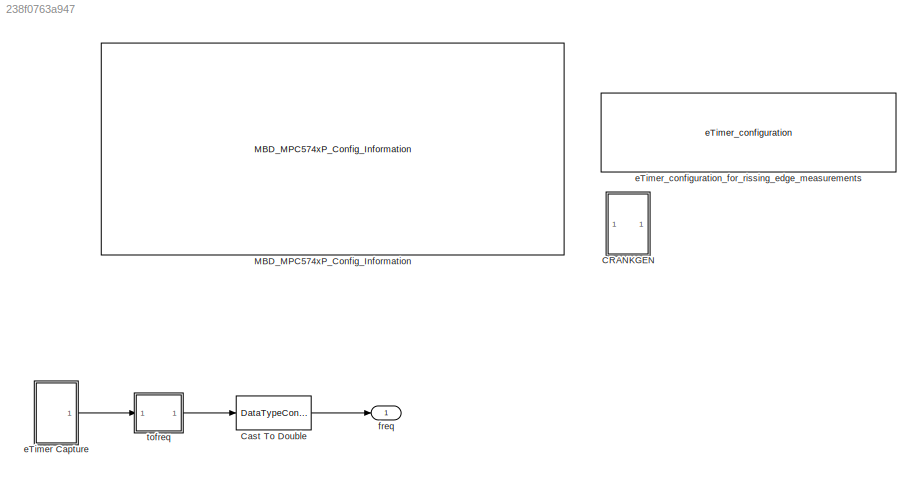
MODEL slx_238f0763a947
KIND model
CONFIG AbsTol = auto
CONFIG EnableMultiTasking = on
CONFIG FixedStep = 1
CONFIG InitFcn = mbd_pnt_consistency_checks(bdroot(gcs));
CONFIG MaxStep = auto
CONFIG MinStep = auto
CONFIG RelTol = 1e-3
CONFIG SampleTimeConstraint = Unconstrained
CONFIG Solver = FixedStepDiscrete
CONFIG SolverName = FixedStepDiscrete
CONFIG StartTime = 0.0
CONFIG StopTime = 50
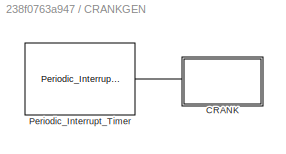
BLOCK [SubSystem] CRANKGEN
  Ports = []
  RequestExecContextInheritance = off
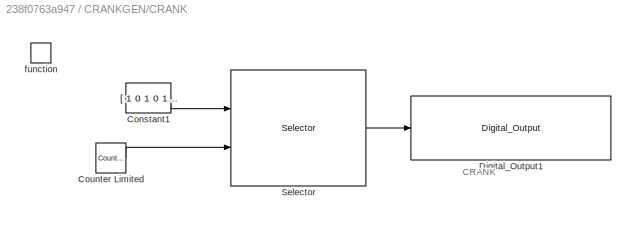
BLOCK [SubSystem] CRANKGEN/CRANK
  Ports = [0, 0, 0, 1]
  RequestExecContextInheritance = off
  TreatAsAtomicUnit = on
BLOCK [Constant] CRANKGEN/CRANK/Constant1
  OutDataTypeStr = boolean
  Value = [ 1 0 1 0 1 0 1 0 1 0 1 0 1 0 1 0 1 0 1 0 1 0 1 0 1 0 1 0 1 0 1 0 1 0 1 0 0 0 0 0 1 0 1 0 1 0 1 0 1 0 1 0 1 0 1 0 1 0 1 0 1 0 1 0 1 0 1 0 1 0 1 0 1 0 1 0 0 0 0 0 1 0 1 0 1 0 1 0 1 0 1 0 1 0 1 0 1 0 1 0 1 0 1 0 1 0 1 0 1 0 1 0 1 0 1 0 0 0 0 0 1 0 1 0 1 0 1 0 1 0 1 0 1 0 1 0 1 0 1 0 1 0 1 0 1 0 1 0 1 0 1 0 1 0 1 0 0 0 0 0 1 0 1 0 1 0 1 0 1 0 1 0 1 0 1 0 1 0 1 0 1 0 1 0 1 0 1 0 1 0 1 0 1 0 1 0 0 0 0 ...<+83ch>
BLOCK [Reference] CRANKGEN/CRANK/Counter Limited  REF=simulink/Sources/Counter
Limited
  Ports = [0, 1]
  SourceBlock = simulink/Sources/Counter\nLimited
  SourceProductBaseCode = SL
  SourceProductName = Simulink
  SourceType = Counter Limited
BLOCK [Reference] CRANKGEN/CRANK/Digital_Output1  REF=mbd_pnt_ec_toolbox/MPC574xP/Peripheral Interface Blocks/Digital_Output
  Ports = [1]
  SourceBlock = mbd_pnt_ec_toolbox/MPC574xP/Peripheral Interface Blocks/Digital_Output
  SourceProductName = Model Based Design Toolbox for MPC574xP
  SourceType = GPIO_PNT_Output
BLOCK [Selector] CRANKGEN/CRANK/Selector
  IndexMode = Zero-based
  IndexOptions = Index vector (port)
  Indices = [1 3]
  InputPortWidth = 240
  OutputSizes = 1
  Ports = [2, 1]
BLOCK [TriggerPort] CRANKGEN/CRANK/function
  Ports = []
  StatesWhenEnabling = held
  TriggerType = function-call
  VariantControl = Variant
BLOCK [Reference] CRANKGEN/Periodic_Interrupt_Timer  REF=mbd_pnt_ec_toolbox/MPC574xP/Utility Blocks/Periodic_Interrupt_Timer
  Ports = [0, 1]
  SourceBlock = mbd_pnt_ec_toolbox/MPC574xP/Utility Blocks/Periodic_Interrupt_Timer
  SourceProductName = Model Based Design Toolbox for MPC574xP
  SourceType = timer_pnt_pit_block
BLOCK [DataTypeConversion] Cast To Double
  OutDataTypeStr = double
  RndMeth = Floor
  SaturateOnIntegerOverflow = off
BLOCK [Reference] MBD_MPC574xP_Config_Information  REF=mbd_pnt_ec_toolbox/MPC574xP/MBD_MPC574xP_Config_Information
  Ports = []
  SourceBlock = mbd_pnt_ec_toolbox/MPC574xP/MBD_MPC574xP_Config_Information
  SourceProductName = Model Based Design Toolbox for MPC574xP
  SourceType = MBDTBX_EC_PNT
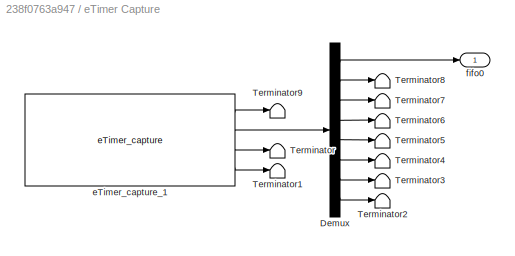
BLOCK [SubSystem] eTimer Capture
  Ports = [0, 1]
  RequestExecContextInheritance = off
BLOCK [Demux] eTimer Capture/Demux
  DisplayOption = bar
  Outputs = 8
  Ports = [1, 8]
BLOCK [Terminator] eTimer Capture/Terminator
BLOCK [Terminator] eTimer Capture/Terminator1
BLOCK [Terminator] eTimer Capture/Terminator2
BLOCK [Terminator] eTimer Capture/Terminator3
BLOCK [Terminator] eTimer Capture/Terminator4
BLOCK [Terminator] eTimer Capture/Terminator5
BLOCK [Terminator] eTimer Capture/Terminator6
BLOCK [Terminator] eTimer Capture/Terminator7
BLOCK [Terminator] eTimer Capture/Terminator8
BLOCK [Terminator] eTimer Capture/Terminator9
BLOCK [Reference] eTimer Capture/eTimer_capture_1  REF=mbd_pnt_ec_toolbox/MPC574xP/Motor Control Blocks/eTimer_capture
  Ports = [0, 4]
  SourceBlock = mbd_pnt_ec_toolbox/MPC574xP/Motor Control Blocks/eTimer_capture
  SourceProductName = Model Based Design Toolbox for MPC574xP
  SourceType = eTimer_pnt_capture
BLOCK [Outport] eTimer Capture/fifo0
  IconDisplay = Port number
BLOCK [Reference] eTimer_configuration_for_rissing_edge_measurements  REF=mbd_pnt_ec_toolbox/MPC574xP/Motor Control Blocks/eTimer_configuration
  Ports = []
  SourceBlock = mbd_pnt_ec_toolbox/MPC574xP/Motor Control Blocks/eTimer_configuration
  SourceProductName = Model Based Design Toolbox for MPC574xP
  SourceType = eTimer_pnt_config
BLOCK [Outport] freq
  IconDisplay = Port number
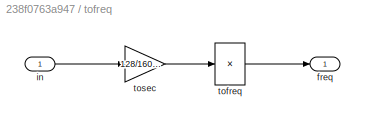
BLOCK [SubSystem] tofreq
  Ports = [1, 1]
  RequestExecContextInheritance = off
BLOCK [Outport] tofreq/freq
  IconDisplay = Port number
BLOCK [Inport] tofreq/in
  IconDisplay = Port number
BLOCK [Product] tofreq/tofreq
  InputSameDT = off
  Inputs = /
  OutDataTypeStr = uint16
  Ports = [1, 1]
  RndMeth = Ceiling
  SaturateOnIntegerOverflow = off
BLOCK [Gain] tofreq/tosec
  Gain = 128/160e+6
  OutDataTypeStr = double
  ParamDataTypeStr = Inherit: Inherit via internal rule
  RndMeth = Ceiling
  SaturateOnIntegerOverflow = off
ANNOTATION CRANKGEN/CRANK: CRANK
LINE CRANKGEN/CRANK/Constant1:1 -> CRANKGEN/CRANK/Selector:1
LINE CRANKGEN/CRANK/Counter Limited:1 -> CRANKGEN/CRANK/Selector:2
LINE CRANKGEN/CRANK/Selector:1 -> CRANKGEN/CRANK/Digital_Output1:1
LINE CRANKGEN/Periodic_Interrupt_Timer:1 -> CRANKGEN/CRANK:trigger
LINE Cast To Double:1 -> freq:1
LINE eTimer Capture/Demux:1 -> eTimer Capture/fifo0:1
LINE eTimer Capture/Demux:2 -> eTimer Capture/Terminator8:1
LINE eTimer Capture/Demux:3 -> eTimer Capture/Terminator7:1
LINE eTimer Capture/Demux:4 -> eTimer Capture/Terminator6:1
LINE eTimer Capture/Demux:5 -> eTimer Capture/Terminator5:1
LINE eTimer Capture/Demux:6 -> eTimer Capture/Terminator4:1
LINE eTimer Capture/Demux:7 -> eTimer Capture/Terminator3:1
LINE eTimer Capture/Demux:8 -> eTimer Capture/Terminator2:1
LINE eTimer Capture/eTimer_capture_1:1 -> eTimer Capture/Terminator9:1
LINE eTimer Capture/eTimer_capture_1:2 -> eTimer Capture/Demux:1
LINE eTimer Capture/eTimer_capture_1:3 -> eTimer Capture/Terminator:1
LINE eTimer Capture/eTimer_capture_1:4 -> eTimer Capture/Terminator1:1
LINE eTimer Capture:1 -> tofreq:1
LINE tofreq/in:1 -> tofreq/tosec:1
LINE tofreq/tofreq:1 -> tofreq/freq:1
LINE tofreq/tosec:1 -> tofreq/tofreq:1
LINE tofreq:1 -> Cast To Double:1
